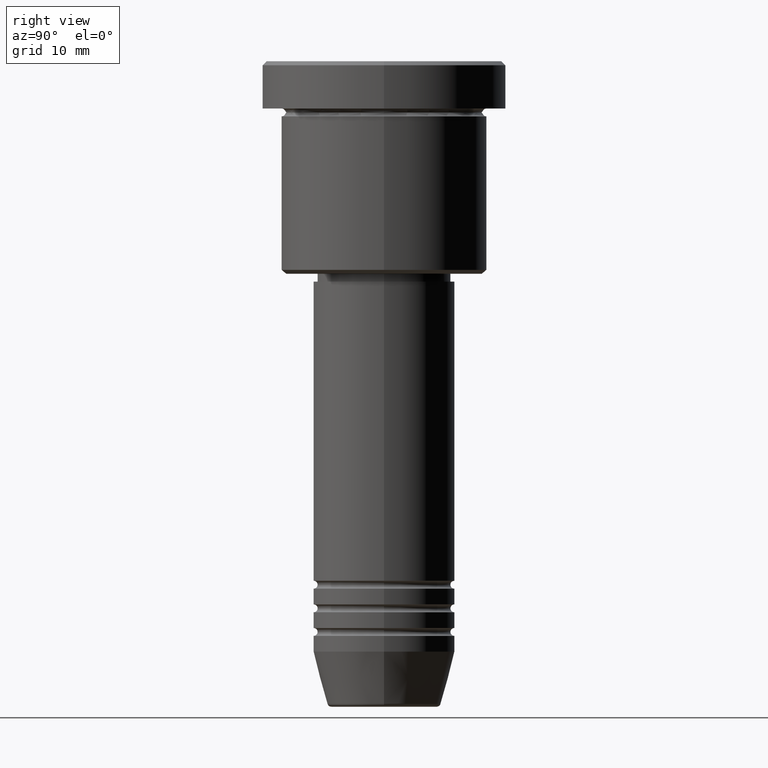
[diagram: clean part render]
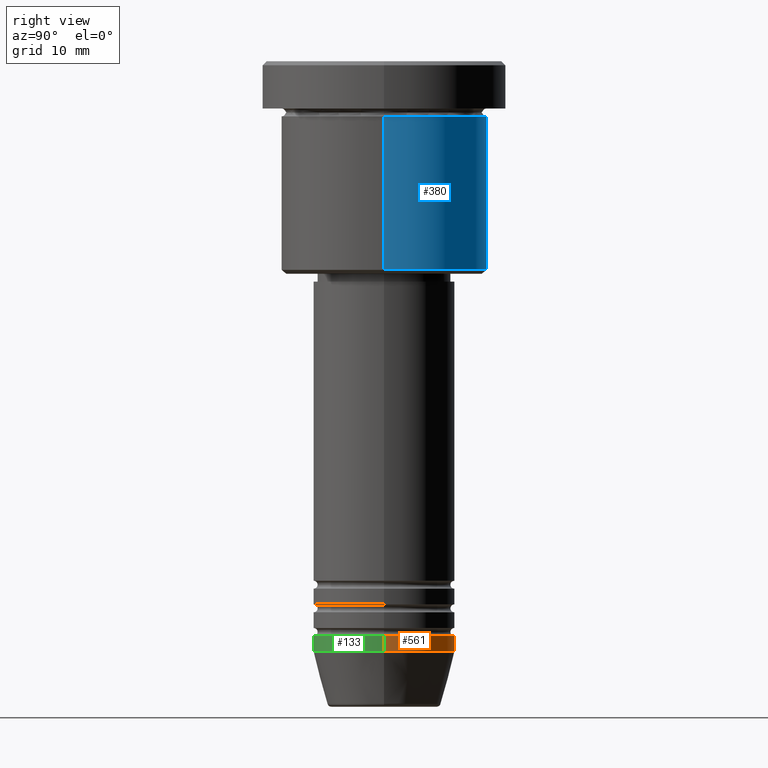
[diagram: same view with three faces highlighted in distinct colors, each labeled with its STEP entity id]
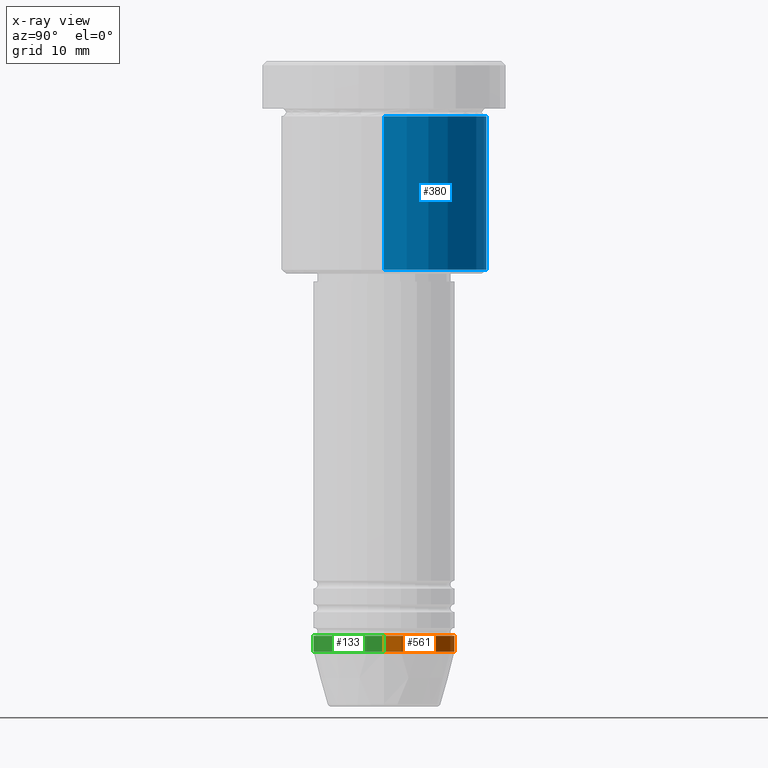
[diagram: x-ray of the same camera — body ghosted, the three highlighted faces saturated]
A machine part, right view with three faces highlighted in distinct colors.
The next image is the same camera in x-ray (body ghosted, the three faces saturated) — at least one of them is partly hidden behind the body in this view.
Their STEP definitions:

[orange] entity #561 — the highlighted cylindrical surface (partial cylindrical patch) has radius 9 mm, axis along (-0, -0, 1).
#26 = ORIENTED_EDGE ( 'NONE', *, *, #288, .T. ) ;
#37 = EDGE_CURVE ( 'NONE', #1087, #998, #954, .T. ) ;
#61 = CYLINDRICAL_SURFACE ( 'NONE', #871, 9.000000000000000000 ) ;
#78 = ORIENTED_EDGE ( 'NONE', *, *, #37, .T. ) ;
#107 = CARTESIAN_POINT ( 'NONE',  ( 9.000000000000000000, 0.000000000000000000, 0.000000000000000000 ) ) ;
#185 = DIRECTION ( 'NONE',  ( -0.000000000000000000, -0.000000000000000000, 1.000000000000000000 ) ) ;
#288 = EDGE_CURVE ( 'NONE', #504, #1087, #756, .T. ) ;
#325 = DIRECTION ( 'NONE',  ( 1.000000000000000000, 0.000000000000000000, 0.000000000000000000 ) ) ;
#346 = EDGE_LOOP ( 'NONE', ( #26, #78, #423, #622 ) ) ;
#402 = DIRECTION ( 'NONE',  ( -0.000000000000000000, -0.000000000000000000, 1.000000000000000000 ) ) ;
#412 = CIRCLE ( 'NONE', #720, 9.000000000000000000 ) ;
#423 = ORIENTED_EDGE ( 'NONE', *, *, #746, .F. ) ;
#456 = EDGE_CURVE ( 'NONE', #504, #786, #578, .T. ) ;
#463 = DIRECTION ( 'NONE',  ( 1.000000000000000000, 0.000000000000000000, 0.000000000000000000 ) ) ;
#504 = VERTEX_POINT ( 'NONE', #848 ) ;
#508 = CARTESIAN_POINT ( 'NONE',  ( -9.000000000000000000, 1.102182119232617714E-15, -73.00000000000001421 ) ) ;
#518 = DIRECTION ( 'NONE',  ( -0.000000000000000000, -0.000000000000000000, 1.000000000000000000 ) ) ;
#532 = DIRECTION ( 'NONE',  ( -0.000000000000000000, -0.000000000000000000, 1.000000000000000000 ) ) ;
#561 = ADVANCED_FACE ( 'NONE', ( #789 ), #61, .T. ) ;
#578 = LINE ( 'NONE', #107, #658 ) ;
#616 = CARTESIAN_POINT ( 'NONE',  ( -9.000000000000000000, 1.102182119232617714E-15, -75.00000000000001421 ) ) ;
#622 = ORIENTED_EDGE ( 'NONE', *, *, #456, .F. ) ;
#636 = DIRECTION ( 'NONE',  ( 1.000000000000000000, 0.000000000000000000, 0.000000000000000000 ) ) ;
#658 = VECTOR ( 'NONE', #402, 1000.000000000000000 ) ;
#720 = AXIS2_PLACEMENT_3D ( 'NONE', #915, #532, #463 ) ;
#736 = CARTESIAN_POINT ( 'NONE',  ( 0.000000000000000000, 0.000000000000000000, -75.00000000000001421 ) ) ;
#746 = EDGE_CURVE ( 'NONE', #786, #998, #412, .T. ) ;
#752 = DIRECTION ( 'NONE',  ( -0.000000000000000000, -0.000000000000000000, 1.000000000000000000 ) ) ;
#756 = CIRCLE ( 'NONE', #907, 9.000000000000000000 ) ;
#777 = CARTESIAN_POINT ( 'NONE',  ( -9.000000000000000000, 1.102182119232617714E-15, 0.000000000000000000 ) ) ;
#786 = VERTEX_POINT ( 'NONE', #1161 ) ;
#789 = FACE_OUTER_BOUND ( 'NONE', #346, .T. ) ;
#848 = CARTESIAN_POINT ( 'NONE',  ( 9.000000000000000000, 0.000000000000000000, -75.00000000000001421 ) ) ;
#871 = AXIS2_PLACEMENT_3D ( 'NONE', #1138, #518, #325 ) ;
#907 = AXIS2_PLACEMENT_3D ( 'NONE', #736, #185, #636 ) ;
#915 = CARTESIAN_POINT ( 'NONE',  ( 0.000000000000000000, 0.000000000000000000, -73.00000000000001421 ) ) ;
#954 = LINE ( 'NONE', #777, #1085 ) ;
#998 = VERTEX_POINT ( 'NONE', #508 ) ;
#1085 = VECTOR ( 'NONE', #752, 1000.000000000000000 ) ;
#1087 = VERTEX_POINT ( 'NONE', #616 ) ;
#1138 = CARTESIAN_POINT ( 'NONE',  ( 0.000000000000000000, 0.000000000000000000, 0.000000000000000000 ) ) ;
#1161 = CARTESIAN_POINT ( 'NONE',  ( 9.000000000000000000, 0.000000000000000000, -73.00000000000001421 ) ) ;

[blue] entity #380 — the highlighted cylindrical surface (partial cylindrical patch) has radius 13 mm, axis along (-0, -0, 1).
#24 = EDGE_CURVE ( 'NONE', #1153, #769, #600, .T. ) ;
#41 = CIRCLE ( 'NONE', #815, 13.00000000000000000 ) ;
#95 = DIRECTION ( 'NONE',  ( -0.000000000000000000, -0.000000000000000000, 1.000000000000000000 ) ) ;
#164 = CARTESIAN_POINT ( 'NONE',  ( 0.000000000000000000, 0.000000000000000000, -6.999999999999995559 ) ) ;
#167 = VERTEX_POINT ( 'NONE', #790 ) ;
#201 = DIRECTION ( 'NONE',  ( -0.000000000000000000, -0.000000000000000000, 1.000000000000000000 ) ) ;
#261 = ORIENTED_EDGE ( 'NONE', *, *, #729, .F. ) ;
#265 = CARTESIAN_POINT ( 'NONE',  ( 0.000000000000000000, 0.000000000000000000, 0.000000000000000000 ) ) ;
#273 = AXIS2_PLACEMENT_3D ( 'NONE', #587, #201, #383 ) ;
#305 = CARTESIAN_POINT ( 'NONE',  ( -13.00000000000000000, 1.592040838891559095E-15, 0.000000000000000000 ) ) ;
#366 = FACE_OUTER_BOUND ( 'NONE', #936, .T. ) ;
#380 = ADVANCED_FACE ( 'NONE', ( #366 ), #551, .T. ) ;
#383 = DIRECTION ( 'NONE',  ( -1.000000000000000000, 0.000000000000000000, 0.000000000000000000 ) ) ;
#403 = ORIENTED_EDGE ( 'NONE', *, *, #24, .T. ) ;
#413 = VECTOR ( 'NONE', #943, 1000.000000000000000 ) ;
#432 = VECTOR ( 'NONE', #958, 1000.000000000000000 ) ;
#457 = DIRECTION ( 'NONE',  ( -0.000000000000000000, -0.000000000000000000, 1.000000000000000000 ) ) ;
#465 = DIRECTION ( 'NONE',  ( 1.000000000000000000, 0.000000000000000000, 0.000000000000000000 ) ) ;
#551 = CYLINDRICAL_SURFACE ( 'NONE', #560, 13.00000000000000000 ) ;
#560 = AXIS2_PLACEMENT_3D ( 'NONE', #265, #95, #465 ) ;
#584 = LINE ( 'NONE', #305, #413 ) ;
#587 = CARTESIAN_POINT ( 'NONE',  ( 0.000000000000000000, 0.000000000000000000, -26.49999999999999645 ) ) ;
#600 = CIRCLE ( 'NONE', #273, 13.00000000000000000 ) ;
#618 = LINE ( 'NONE', #892, #432 ) ;
#633 = VERTEX_POINT ( 'NONE', #1063 ) ;
#638 = EDGE_CURVE ( 'NONE', #1153, #633, #618, .T. ) ;
#716 = CARTESIAN_POINT ( 'NONE',  ( -13.00000000000000000, 1.592040838891559095E-15, -26.49999999999999645 ) ) ;
#729 = EDGE_CURVE ( 'NONE', #633, #167, #41, .T. ) ;
#753 = ORIENTED_EDGE ( 'NONE', *, *, #638, .F. ) ;
#769 = VERTEX_POINT ( 'NONE', #716 ) ;
#790 = CARTESIAN_POINT ( 'NONE',  ( -13.00000000000000000, 1.592040838891559095E-15, -6.999999999999995559 ) ) ;
#815 = AXIS2_PLACEMENT_3D ( 'NONE', #164, #457, #1083 ) ;
#890 = ORIENTED_EDGE ( 'NONE', *, *, #900, .T. ) ;
#892 = CARTESIAN_POINT ( 'NONE',  ( 13.00000000000000000, 0.000000000000000000, 0.000000000000000000 ) ) ;
#900 = EDGE_CURVE ( 'NONE', #769, #167, #584, .T. ) ;
#936 = EDGE_LOOP ( 'NONE', ( #403, #890, #261, #753 ) ) ;
#943 = DIRECTION ( 'NONE',  ( -0.000000000000000000, -0.000000000000000000, 1.000000000000000000 ) ) ;
#958 = DIRECTION ( 'NONE',  ( -0.000000000000000000, -0.000000000000000000, 1.000000000000000000 ) ) ;
#1063 = CARTESIAN_POINT ( 'NONE',  ( 13.00000000000000000, 0.000000000000000000, -6.999999999999995559 ) ) ;
#1083 = DIRECTION ( 'NONE',  ( 1.000000000000000000, 0.000000000000000000, 0.000000000000000000 ) ) ;
#1153 = VERTEX_POINT ( 'NONE', #1160 ) ;
#1160 = CARTESIAN_POINT ( 'NONE',  ( 13.00000000000000000, 0.000000000000000000, -26.49999999999999645 ) ) ;

[green] entity #133 — the highlighted cylindrical surface (partial cylindrical patch) has radius 9 mm, axis along (-0, -0, 1).
#37 = EDGE_CURVE ( 'NONE', #1087, #998, #954, .T. ) ;
#45 = ORIENTED_EDGE ( 'NONE', *, *, #456, .T. ) ;
#50 = CARTESIAN_POINT ( 'NONE',  ( 0.000000000000000000, 0.000000000000000000, 0.000000000000000000 ) ) ;
#62 = AXIS2_PLACEMENT_3D ( 'NONE', #763, #1116, #1013 ) ;
#107 = CARTESIAN_POINT ( 'NONE',  ( 9.000000000000000000, 0.000000000000000000, 0.000000000000000000 ) ) ;
#127 = EDGE_CURVE ( 'NONE', #1087, #504, #176, .T. ) ;
#133 = ADVANCED_FACE ( 'NONE', ( #1052 ), #1144, .T. ) ;
#154 = DIRECTION ( 'NONE',  ( 1.000000000000000000, 0.000000000000000000, 0.000000000000000000 ) ) ;
#176 = CIRCLE ( 'NONE', #1016, 9.000000000000000000 ) ;
#402 = DIRECTION ( 'NONE',  ( -0.000000000000000000, -0.000000000000000000, 1.000000000000000000 ) ) ;
#456 = EDGE_CURVE ( 'NONE', #504, #786, #578, .T. ) ;
#473 = EDGE_CURVE ( 'NONE', #998, #786, #580, .T. ) ;
#504 = VERTEX_POINT ( 'NONE', #848 ) ;
#508 = CARTESIAN_POINT ( 'NONE',  ( -9.000000000000000000, 1.102182119232617714E-15, -73.00000000000001421 ) ) ;
#515 = DIRECTION ( 'NONE',  ( -0.000000000000000000, -0.000000000000000000, 1.000000000000000000 ) ) ;
#558 = AXIS2_PLACEMENT_3D ( 'NONE', #50, #1064, #154 ) ;
#578 = LINE ( 'NONE', #107, #658 ) ;
#580 = CIRCLE ( 'NONE', #62, 9.000000000000000000 ) ;
#616 = CARTESIAN_POINT ( 'NONE',  ( -9.000000000000000000, 1.102182119232617714E-15, -75.00000000000001421 ) ) ;
#658 = VECTOR ( 'NONE', #402, 1000.000000000000000 ) ;
#752 = DIRECTION ( 'NONE',  ( -0.000000000000000000, -0.000000000000000000, 1.000000000000000000 ) ) ;
#763 = CARTESIAN_POINT ( 'NONE',  ( 0.000000000000000000, 0.000000000000000000, -73.00000000000001421 ) ) ;
#777 = CARTESIAN_POINT ( 'NONE',  ( -9.000000000000000000, 1.102182119232617714E-15, 0.000000000000000000 ) ) ;
#786 = VERTEX_POINT ( 'NONE', #1161 ) ;
#838 = EDGE_LOOP ( 'NONE', ( #1170, #1101, #45, #1182 ) ) ;
#848 = CARTESIAN_POINT ( 'NONE',  ( 9.000000000000000000, 0.000000000000000000, -75.00000000000001421 ) ) ;
#877 = CARTESIAN_POINT ( 'NONE',  ( 0.000000000000000000, 0.000000000000000000, -75.00000000000001421 ) ) ;
#954 = LINE ( 'NONE', #777, #1085 ) ;
#981 = DIRECTION ( 'NONE',  ( 1.000000000000000000, 0.000000000000000000, 0.000000000000000000 ) ) ;
#998 = VERTEX_POINT ( 'NONE', #508 ) ;
#1013 = DIRECTION ( 'NONE',  ( 1.000000000000000000, 0.000000000000000000, 0.000000000000000000 ) ) ;
#1016 = AXIS2_PLACEMENT_3D ( 'NONE', #877, #515, #981 ) ;
#1052 = FACE_OUTER_BOUND ( 'NONE', #838, .T. ) ;
#1064 = DIRECTION ( 'NONE',  ( -0.000000000000000000, -0.000000000000000000, 1.000000000000000000 ) ) ;
#1085 = VECTOR ( 'NONE', #752, 1000.000000000000000 ) ;
#1087 = VERTEX_POINT ( 'NONE', #616 ) ;
#1101 = ORIENTED_EDGE ( 'NONE', *, *, #127, .T. ) ;
#1116 = DIRECTION ( 'NONE',  ( -0.000000000000000000, -0.000000000000000000, 1.000000000000000000 ) ) ;
#1144 = CYLINDRICAL_SURFACE ( 'NONE', #558, 9.000000000000000000 ) ;
#1161 = CARTESIAN_POINT ( 'NONE',  ( 9.000000000000000000, 0.000000000000000000, -73.00000000000001421 ) ) ;
#1170 = ORIENTED_EDGE ( 'NONE', *, *, #37, .F. ) ;
#1182 = ORIENTED_EDGE ( 'NONE', *, *, #473, .F. ) ;